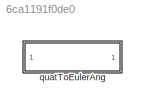
MODEL slx_6ca1191f0de0
KIND library
CONFIG AbsTol = auto
CONFIG EnableMultiTasking = off
CONFIG FixedStep = auto
CONFIG MaxStep = auto
CONFIG MinStep = auto
CONFIG RelTol = 1e-3
CONFIG SampleTimeConstraint = Unconstrained
CONFIG SolverName = VariableStepAuto
CONFIG StartTime = 0.0
CONFIG StopTime = 10.0
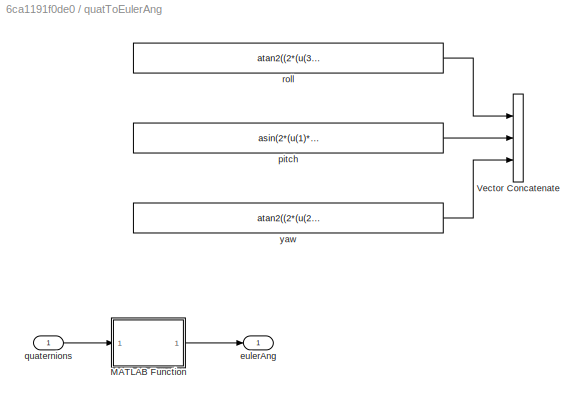
BLOCK [SubSystem] quatToEulerAng
  Ports = [1, 1]
  RequestExecContextInheritance = off
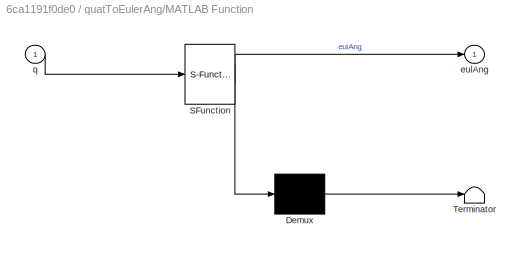
BLOCK [SubSystem] quatToEulerAng/MATLAB Function
  ErrorFcn = Stateflow.Translate.translate
  PermitHierarchicalResolution = ExplicitOnly
  Ports = [1, 1]
  RequestExecContextInheritance = off
  SFBlockType = MATLAB Function
  TreatAsAtomicUnit = on
BLOCK [Demux] quatToEulerAng/MATLAB Function/ Demux 
  Outputs = 1
  Ports = [1, 1]
BLOCK [S-Function] quatToEulerAng/MATLAB Function/ SFunction 
  EnableBusSupport = off
  FunctionName = sf_sfun
  PortCounts = [1 2]
  Ports = [1, 2]
  SFcnIsStateOwnerBlock = off
  SFunctionDeploymentMode = off
  Tag = Stateflow S-Function 1
BLOCK [Terminator] quatToEulerAng/MATLAB Function/ Terminator 
BLOCK [Outport] quatToEulerAng/MATLAB Function/eulAng
  VectorParamsAs1DForOutWhenUnconnected = off
BLOCK [Inport] quatToEulerAng/MATLAB Function/q
BLOCK [Concatenate] quatToEulerAng/Vector Concatenate
  Commented = on
  NumInputs = 3
  Ports = [3, 1]
BLOCK [Outport] quatToEulerAng/eulerAng
  PortDimensions = [3,1]
  VectorParamsAs1DForOutWhenUnconnected = off
BLOCK [Fcn] quatToEulerAng/pitch
  Commented = on
  Expr = asin(2*(u(1)*u(3) - u(2)*u(4)))
BLOCK [Inport] quatToEulerAng/quaternions
BLOCK [Fcn] quatToEulerAng/roll
  Commented = on
  Expr = atan2((2*(u(3)*u(4) + u(1)*u(2))),(u(1)^2 - u(2)^2 - u(3)^2 + u(4)^2))
BLOCK [Fcn] quatToEulerAng/yaw
  Commented = on
  Expr = atan2((2*(u(2)*u(3) + u(1)*u(4))),(u(1)^2 + u(2)^2 - u(3)^2 - u(4)^3))
LINE quatToEulerAng/MATLAB Function:1 -> quatToEulerAng/eulerAng:1
LINE quatToEulerAng/pitch:1 -> quatToEulerAng/Vector Concatenate:2
LINE quatToEulerAng/quaternions:1 -> quatToEulerAng/MATLAB Function:1
LINE quatToEulerAng/roll:1 -> quatToEulerAng/Vector Concatenate:1
LINE quatToEulerAng/yaw:1 -> quatToEulerAng/Vector Concatenate:3
CHART quatToEulerAng/MATLAB Function states=1 transitions=1
  STATE_LABEL 'eML_blk_kernel()'
  STATE_LABEL 'SCRIPT:\nfunction eulAng = fcn(q)\nq0 = q(1);\nq1 = q(2);\nq2 = q(3);\nq3 = q(4);\n\neulAng = zeros(3,1);\n\neulAng(1) = -atan2(....\n    2*(q0*q1+q2*q3),...\n    1-2*(q1^2+q2^2));\n\neulAng(2) = -asin(2*(q0*q2-q3*q1));\n\neulAng(3) = -atan2(...\n    2*(q0*q3+q1*q2),...\n    1-2*(q2^2+q3^2));\n'
CHART  states=0 transitions=0
